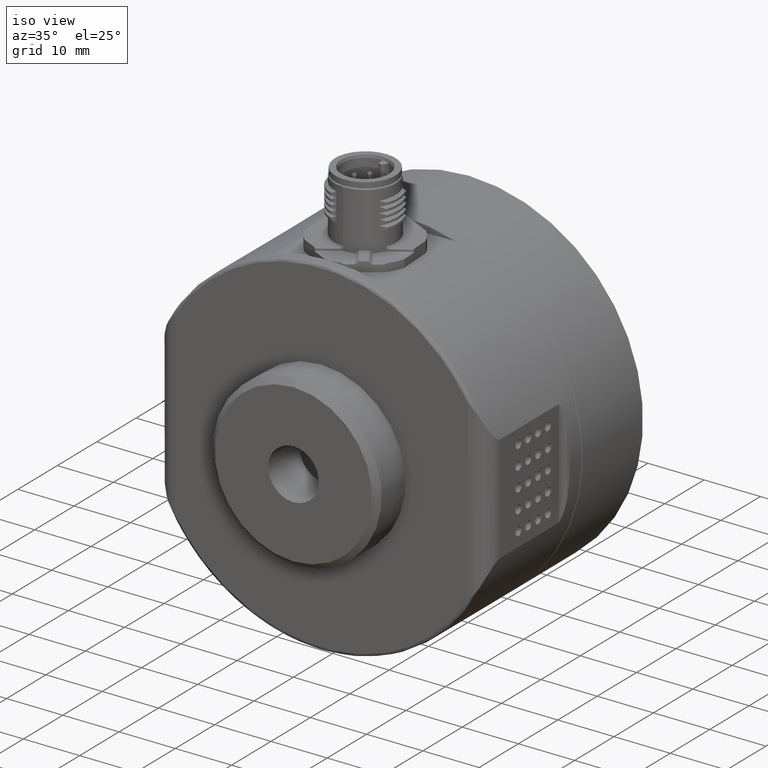
[diagram: clean part render]
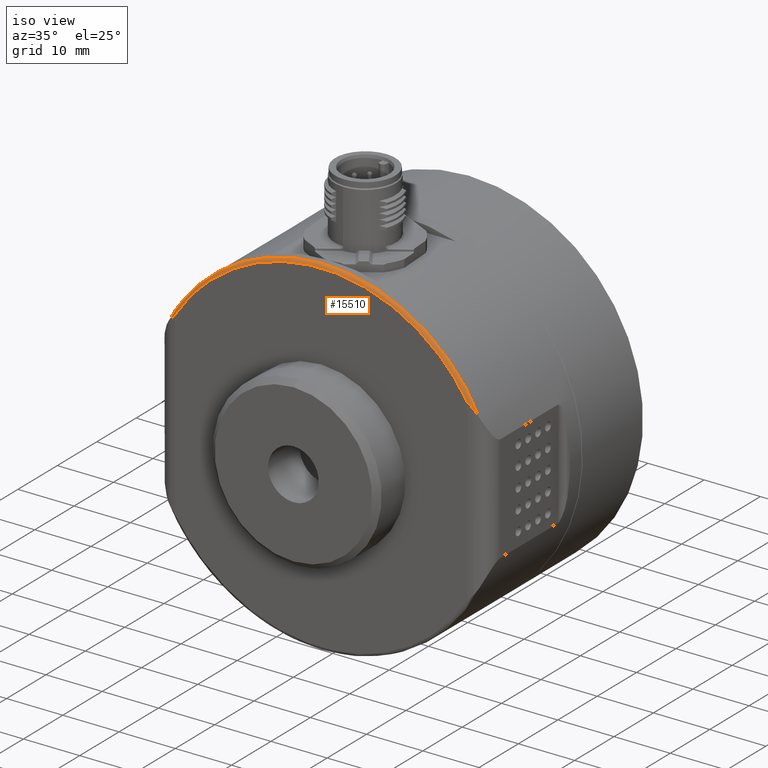
[diagram: same view with one face highlighted and labeled with its STEP entity id]
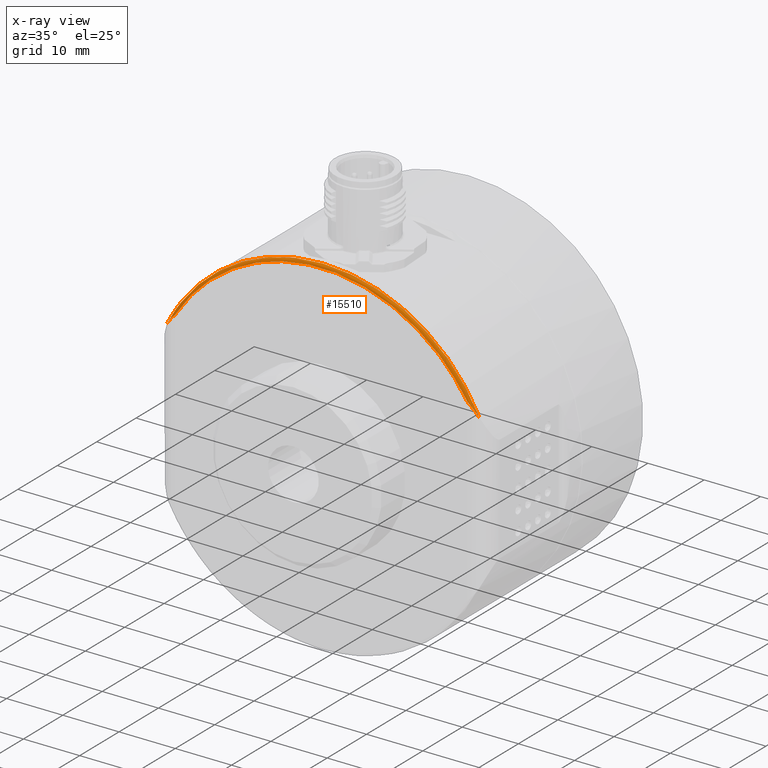
[diagram: x-ray of the same camera — body ghosted, the highlighted face saturated]
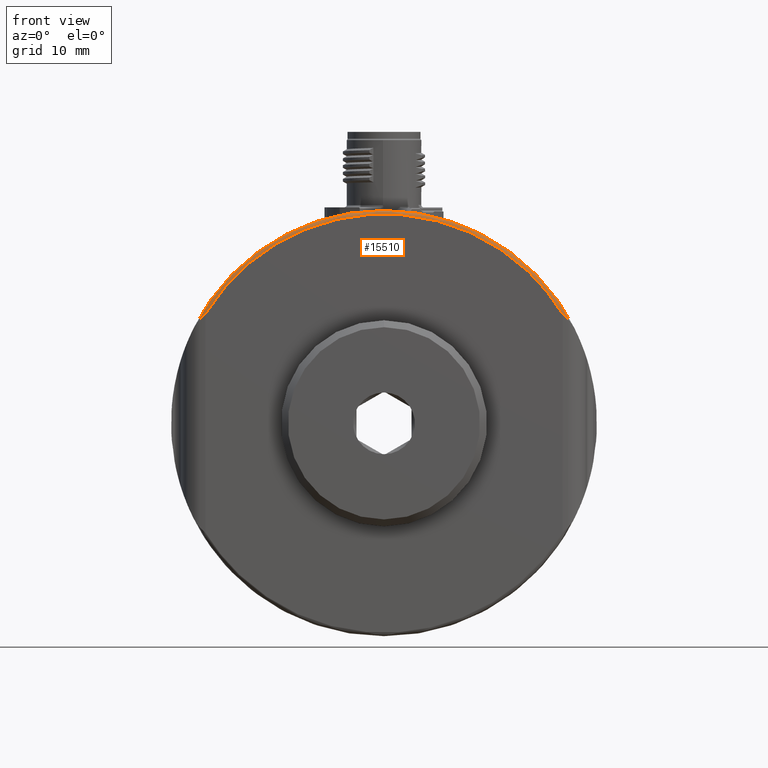
[diagram: same view with one face highlighted and labeled with its STEP entity id]
A machine part, iso view. The second image highlights one B-rep face of the part: STEP entity #15510.
The next image is the same camera in x-ray: the body ghosted, the highlighted face saturated — about 0% of this face is hidden behind the body in this view.
A second angle (front view) of the same face is appended — the face is thin or edge-on in the first view.
In plain terms, the highlighted face is a freeform B-spline surface patch.
Its self-contained STEP definition (entity closure, byte-faithful):
#290 = AXIS2_PLACEMENT_3D ( 'NONE', #9741, #4678, #17542 ) ;
#1462 = CARTESIAN_POINT ( 'NONE',  ( -26.84675525649644001, 7.103750489640388466, 15.10660826275925039 ) ) ;
#1556 = CARTESIAN_POINT ( 'NONE',  ( -26.99191942183109560, 7.143479581205147255, 14.93971739706575974 ) ) ;
#1652 = CARTESIAN_POINT ( 'NONE',  ( -26.65316485373524813, 7.060402648696473271, 15.31577344562801102 ) ) ;
#2358 = CARTESIAN_POINT ( 'NONE',  ( 27.39236051193847743, 7.288078150380125741, 14.41569639514577439 ) ) ;
#2995 = CARTESIAN_POINT ( 'NONE',  ( -27.79640873484396835, 7.000000000000008882, 13.24997865019934551 ) ) ;
#3006 = CIRCLE ( 'NONE', #290, 31.00000000000000000 ) ;
#3267 = CARTESIAN_POINT ( 'NONE',  ( -14.79749146236753532, 7.000000000000000000, 39.83901681438088360 ) ) ;
#3359 = CARTESIAN_POINT ( 'NONE',  ( 15.04007328961946577, 7.207106781186555899, 40.49211545068219209 ) ) ;
#3587 = CARTESIAN_POINT ( 'NONE',  ( 27.32356021055346318, 7.258974175025271869, 14.51448720855311691 ) ) ;
#3829 = CARTESIAN_POINT ( 'NONE',  ( -26.00000000000000355, 6.999999999999999112, 15.94521871910200161 ) ) ;
#3952 = CARTESIAN_POINT ( 'NONE',  ( 27.80277563773200811, 7.500000000000001776, 13.71151584756169939 ) ) ;
#3986 = CARTESIAN_POINT ( 'NONE',  ( -26.00000000000000355, 6.999999999999999112, 15.94521871910200161 ) ) ;
#4499 = CARTESIAN_POINT ( 'NONE',  ( 27.98336176652927065, 7.207106781186554123, 13.33909533077668108 ) ) ;
#4678 = DIRECTION ( 'NONE',  ( -0.000000000000000000, 1.000000000000000000, -0.000000000000000000 ) ) ;
#4681 = CARTESIAN_POINT ( 'NONE',  ( -27.98336176652927065, 7.500000000000000000, 13.33909533077668463 ) ) ;
#5082 = CARTESIAN_POINT ( 'NONE',  ( 27.09061135671973730, 7.174144399187174947, 14.82015127430190304 ) ) ;
#5354 = CARTESIAN_POINT ( 'NONE',  ( 26.75760061208266549, 7.071900066430338860, 15.22151205464083645 ) ) ;
#5516 = CARTESIAN_POINT ( 'NONE',  ( -12.71028113539746940, 6.999999999999997335, 37.61520622863209695 ) ) ;
#6495 = CARTESIAN_POINT ( 'NONE',  ( 27.21450280256964049, 7.217242325448183671, 14.66167515073787975 ) ) ;
#7190 = CARTESIAN_POINT ( 'NONE',  ( -26.90155517840251775, 7.117763660085286048, 15.04513255979402508 ) ) ;
#7282 = CARTESIAN_POINT ( 'NONE',  ( -27.00443526268167105, 7.147220762579415521, 14.92481289649464316 ) ) ;
#7805 = CARTESIAN_POINT ( 'NONE',  ( 27.58733386872108539, 7.377371260893239580, 14.11732739907120759 ) ) ;
#7945 = CARTESIAN_POINT ( 'NONE',  ( 26.00000000000000355, 6.999999999999999112, 15.94521871910200161 ) ) ;
#8076 = CARTESIAN_POINT ( 'NONE',  ( 27.04105236608410934, 7.158407952732164681, 14.88078026906074314 ) ) ;
#8748 = ORIENTED_EDGE ( 'NONE', *, *, #16590, .F. ) ;
#8757 = B_SPLINE_CURVE_WITH_KNOTS ( 'NONE', 3,
 ( #12222, #12502, #7805, #2358, #3587, #6495, #17950, #5082, #13725, #8076, #18229, #13816, #5354, #11083, #16813 ),
 .UNSPECIFIED., .F., .F.,
 ( 4, 2, 2, 1, 1, 1, 2, 2, 4 ),
 ( 0.000000000000000000, 0.2500000000000195399, 0.3750000000000300315, 0.4375000000000353051, 0.4687500000000385803, 0.4843750000000408007, 0.4921875000000414113, 0.5000000000000419664, 1.000000000000000000 ),
 .UNSPECIFIED. ) ;
#8897 = CARTESIAN_POINT ( 'NONE',  ( 27.98336176652927065, 7.500000000000000000, 13.33909533077667930 ) ) ;
#9341 = ORIENTED_EDGE ( 'NONE', *, *, #14575, .F. ) ;
#9349 = VERTEX_POINT ( 'NONE', #7945 ) ;
#9741 = CARTESIAN_POINT ( 'NONE',  ( 0.000000000000000000, 7.500000000000000000, 0.000000000000000000 ) ) ;
#9908 = VERTEX_POINT ( 'NONE', #3986 ) ;
#10121 = CARTESIAN_POINT ( 'NONE',  ( 27.53201722190784295, 6.999999999999999112, 13.12394863189319061 ) ) ;
#10184 = CARTESIAN_POINT ( 'NONE',  ( -27.01595836168410258, 7.150693160489367095, 14.91104106602166013 ) ) ;
#10396 = CARTESIAN_POINT ( 'NONE',  ( 14.93959260678647638, 7.000000000000008882, 40.22159313795880564 ) ) ;
#10860 = CARTESIAN_POINT ( 'NONE',  ( 12.71028113539746940, 6.999999999999997335, 37.61520622863208985 ) ) ;
#10955 = CARTESIAN_POINT ( 'NONE',  ( 26.00000000000000355, 6.999999999999999112, 15.94521871910200161 ) ) ;
#11083 = CARTESIAN_POINT ( 'NONE',  ( 26.41533613857938079, 7.000000000000001776, 15.56825435038818739 ) ) ;
#11903 = FACE_OUTER_BOUND ( 'NONE', #17760, .T. ) ;
#12222 = CARTESIAN_POINT ( 'NONE',  ( 27.80277563773200811, 7.500000000000001776, 13.71151584756169939 ) ) ;
#12502 = CARTESIAN_POINT ( 'NONE',  ( 27.70205201450626831, 7.439472635301520143, 13.91575266055147253 ) ) ;
#12830 = CARTESIAN_POINT ( 'NONE',  ( -26.96232303047238688, 7.134812963121364149, 14.97464937345510627 ) ) ;
#12918 = CARTESIAN_POINT ( 'NONE',  ( -27.34316665860298912, 7.250484067306442348, 14.51784084572041955 ) ) ;
#12964 = EDGE_CURVE ( 'NONE', #9908, #9349, #15816, .T. ) ;
#13046 = CARTESIAN_POINT ( 'NONE',  ( 14.79749146236754420, 7.000000000000000000, 39.83901681438087650 ) ) ;
#13176 = CARTESIAN_POINT ( 'NONE',  ( -27.80277563773200100, 7.500000000000001776, 13.71151584756169939 ) ) ;
#13725 = CARTESIAN_POINT ( 'NONE',  ( 27.05601678757685136, 7.163082401606110317, 14.86260794863032153 ) ) ;
#13816 = CARTESIAN_POINT ( 'NONE',  ( 27.02510783116375848, 7.153483535503901258, 14.90004620337899865 ) ) ;
#14423 = CARTESIAN_POINT ( 'NONE',  ( -26.00000000000000355, 6.999999999999999112, 15.94521871910200161 ) ) ;
#14454 = CARTESIAN_POINT ( 'NONE',  ( 15.04007328961946399, 7.500000000000000000, 40.49211545068217077 ) ) ;
#14518 = CARTESIAN_POINT ( 'NONE',  ( -26.39758378428619068, 7.018370468376966542, 15.57583016743771687 ) ) ;
#14547 = CARTESIAN_POINT ( 'NONE',  ( 27.79640873484396835, 7.000000000000008882, 13.24997865019933663 ) ) ;
#14575 = EDGE_CURVE ( 'NONE', #17756, #15033, #3006, .T. ) ;
#15027 = EDGE_CURVE ( 'NONE', #15033, #9349, #8757, .T. ) ;
#15033 = VERTEX_POINT ( 'NONE', #3952 ) ;
#15510 = ADVANCED_FACE ( 'NONE', ( #11903 ), #16380, .T. ) ;
#15816 =( BOUNDED_CURVE ( )  B_SPLINE_CURVE ( 3, ( #3829, #5516, #10860, #10955 ),
 .UNSPECIFIED., .F., .T. ) 
 B_SPLINE_CURVE_WITH_KNOTS ( ( 4, 4 ),
 ( 0.000000000000000000, 1.000000000000000000 ),
 .UNSPECIFIED. ) 
 CURVE ( )  GEOMETRIC_REPRESENTATION_ITEM ( )  RATIONAL_B_SPLINE_CURVE ( ( 1.000000000000000000, 0.6818627042426665952, 0.6818627042426665952, 1.000000000000000000 ) ) 
 REPRESENTATION_ITEM ( '' )  );
#15868 = CARTESIAN_POINT ( 'NONE',  ( -27.53201722190784295, 6.999999999999999112, 13.12394863189319594 ) ) ;
#15927 = ORIENTED_EDGE ( 'NONE', *, *, #15027, .F. ) ;
#16021 = CARTESIAN_POINT ( 'NONE',  ( -27.01274180196567443, 7.149720481161562446, 14.91489130643676830 ) ) ;
#16051 = CARTESIAN_POINT ( 'NONE',  ( -27.98336176652927065, 7.207106781186554123, 13.33909533077668286 ) ) ;
#16141 = CARTESIAN_POINT ( 'NONE',  ( -15.04007328961946044, 7.207106781186555899, 40.49211545068219920 ) ) ;
#16229 = CARTESIAN_POINT ( 'NONE',  ( -14.93959260678646395, 7.000000000000008882, 40.22159313795881275 ) ) ;
#16380 =( BOUNDED_SURFACE ( )  B_SPLINE_SURFACE ( 3, 3, ( 
 ( #10121, #13046, #3267, #15868 ),
 ( #14547, #10396, #16229, #2995 ),
 ( #4499, #3359, #16141, #16051 ),
 ( #8897, #14454, #17546, #4681 ) ),
 .UNSPECIFIED., .F., .F., .F. ) 
 B_SPLINE_SURFACE_WITH_KNOTS ( ( 4, 4 ),
 ( 4, 4 ),
 ( 0.000000000000000000, 1.000000000000000000 ),
 ( 0.000000000000000000, 1.000000000000000000 ),
 .UNSPECIFIED. ) 
 GEOMETRIC_REPRESENTATION_ITEM ( )  RATIONAL_B_SPLINE_SURFACE ( (
 ( 1.000000000000000000, 0.6201955985113264402, 0.6201955985113264402, 1.000000000000000000),
 ( 0.8047378541243723760, 0.4990948750833856251, 0.4990948750833856251, 0.8047378541243723760),
 ( 0.8047378541243723760, 0.4990948750833856251, 0.4990948750833856251, 0.8047378541243723760),
 ( 1.000000000000000000, 0.6201955985113264402, 0.6201955985113264402, 1.000000000000000000) ) ) 
 REPRESENTATION_ITEM ( '' )  SURFACE ( )  );
#16590 = EDGE_CURVE ( 'NONE', #9908, #17756, #18335, .T. ) ;
#16813 = CARTESIAN_POINT ( 'NONE',  ( 26.00000000000000355, 6.999999999999999112, 15.94521871910200161 ) ) ;
#17145 = CARTESIAN_POINT ( 'NONE',  ( -27.80277563773200100, 7.500000000000001776, 13.71151584756169939 ) ) ;
#17236 = ORIENTED_EDGE ( 'NONE', *, *, #12964, .T. ) ;
#17240 = CARTESIAN_POINT ( 'NONE',  ( -27.60131554710258683, 7.378937552212677886, 14.12001551761992069 ) ) ;
#17332 = CARTESIAN_POINT ( 'NONE',  ( -26.73351644924589010, 7.076847297771436729, 15.23097505968460830 ) ) ;
#17542 = DIRECTION ( 'NONE',  ( 0.000000000000000000, 0.000000000000000000, -1.000000000000000000 ) ) ;
#17546 = CARTESIAN_POINT ( 'NONE',  ( -15.04007328961945866, 7.500000000000000000, 40.49211545068219209 ) ) ;
#17756 = VERTEX_POINT ( 'NONE', #13176 ) ;
#17760 = EDGE_LOOP ( 'NONE', ( #9341, #8748, #17236, #15927 ) ) ;
#17950 = CARTESIAN_POINT ( 'NONE',  ( 27.15851112043894489, 7.196859059844000761, 14.73501955234868355 ) ) ;
#18229 = CARTESIAN_POINT ( 'NONE',  ( 27.03104537951598374, 7.155306760751936501, 14.89288994998350013 ) ) ;
#18335 = B_SPLINE_CURVE_WITH_KNOTS ( 'NONE', 3,
 ( #14423, #18557, #14518, #1652, #17332, #1462, #7190, #12830, #1556, #7282, #16021, #10184, #12918, #17240, #17145 ),
 .UNSPECIFIED., .F., .F.,
 ( 4, 2, 2, 1, 1, 1, 2, 2, 4 ),
 ( 0.000000000000000000, 0.2499999999999770184, 0.3749999999999655276, 0.4374999999999592548, 0.4687499999999554245, 0.4843749999999527600, 0.4921874999999527045, 0.4999999999999526490, 1.000000000000000000 ),
 .UNSPECIFIED. ) ;
#18557 = CARTESIAN_POINT ( 'NONE',  ( -26.20765315924810679, 7.000000000000001776, 15.75675006728351590 ) ) ;